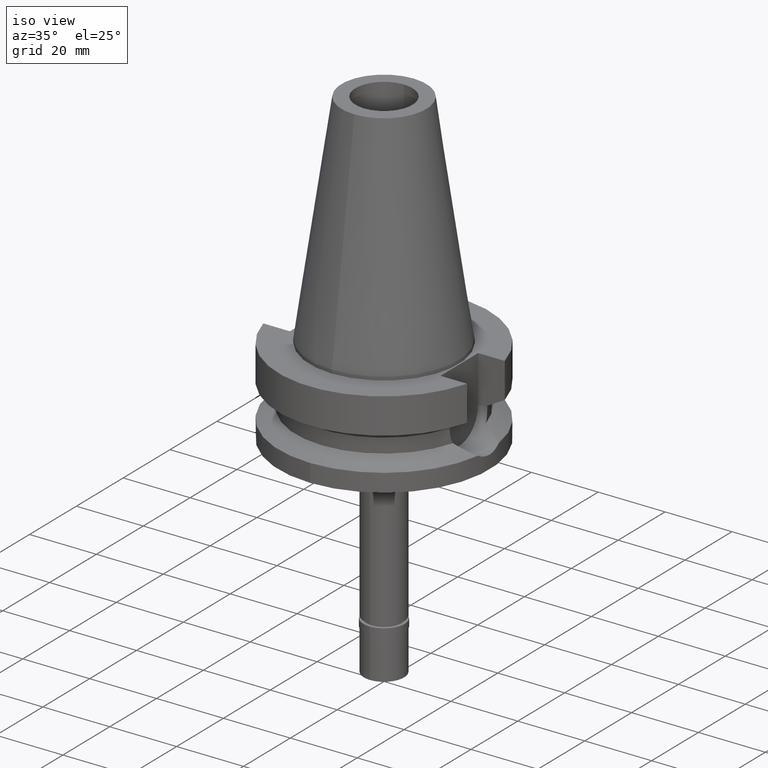
[diagram: clean part render]
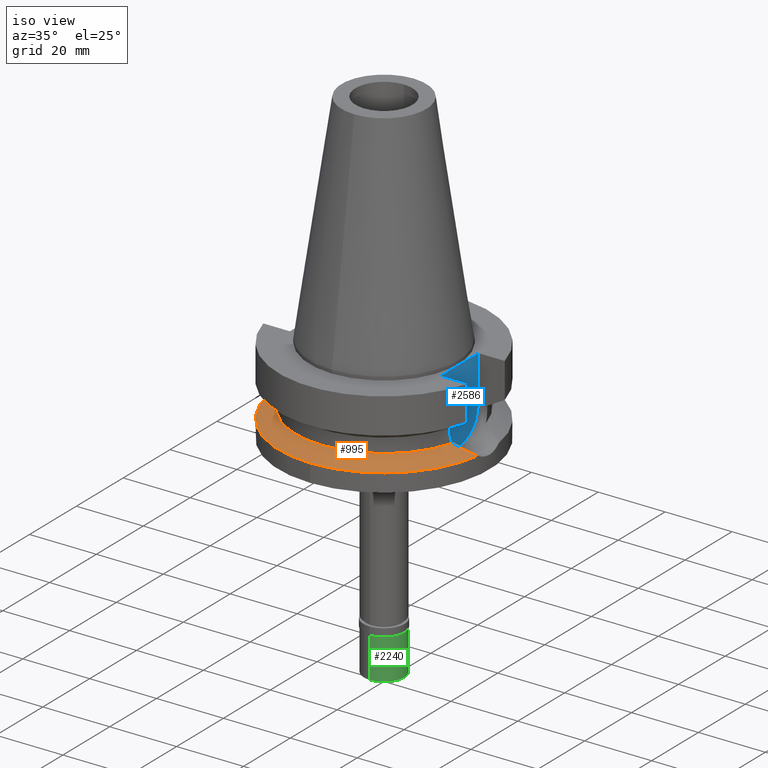
[diagram: same view with three faces highlighted in distinct colors, each labeled with its STEP entity id]
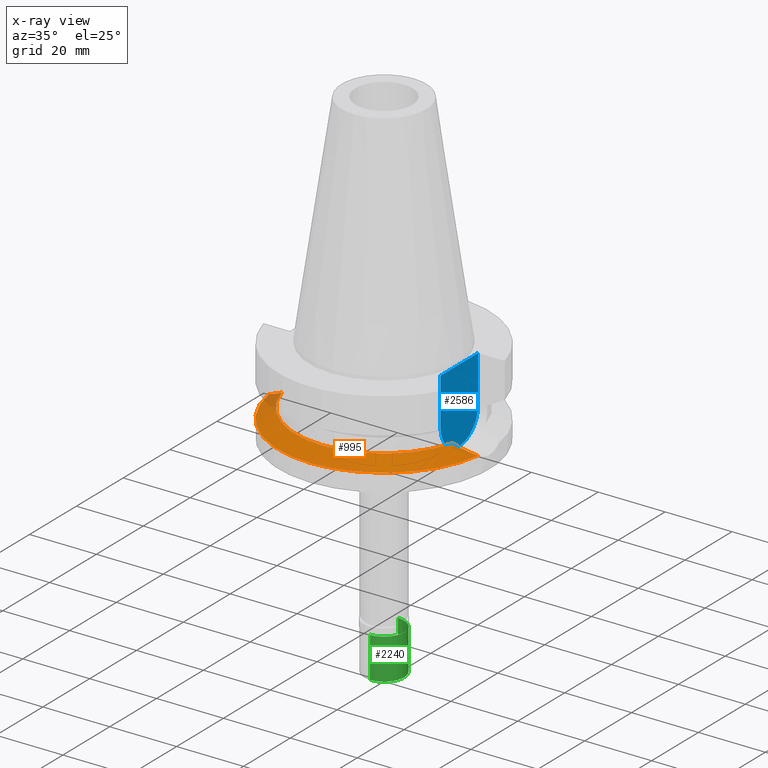
[diagram: x-ray of the same camera — body ghosted, the three highlighted faces saturated]
A machine part, iso view with three faces highlighted in distinct colors.
The next image is the same camera in x-ray (body ghosted, the three faces saturated) — at least one of them is partly hidden behind the body in this view.
Their STEP definitions:

[orange] entity #995 — the highlighted conical surface has half-angle 60 deg.
#23 = CARTESIAN_POINT ( 'NONE',  ( -27.91665599519674501, -6.326256498489589042, -19.97042922207483429 ) ) ;
#39 = CARTESIAN_POINT ( 'NONE',  ( -29.23770041687165389, -5.690342877628317808, -20.64502539969078754 ) ) ;
#70 = CARTESIAN_POINT ( 'NONE',  ( 30.86094042695607698, -4.726837132592925705, -21.47257276268047832 ) ) ;
#82 = ORIENTED_EDGE ( 'NONE', *, *, #2292, .F. ) ;
#159 = CARTESIAN_POINT ( 'NONE',  ( -28.90623061104463787, -5.854053380234840454, -20.47577725030850715 ) ) ;
#189 = DIRECTION ( 'NONE',  ( 0.0000000000000000000, -1.000000000000000000, 0.0000000000000000000 ) ) ;
#223 = EDGE_CURVE ( 'NONE', #1671, #296, #1855, .T. ) ;
#253 = CARTESIAN_POINT ( 'NONE',  ( 27.46418679692785503, -6.470923543611245776, -19.73859204447179394 ) ) ;
#296 = VERTEX_POINT ( 'NONE', #2435 ) ;
#308 = VERTEX_POINT ( 'NONE', #492 ) ;
#418 = DIRECTION ( 'NONE',  ( 0.0000000000000000000, 0.0000000000000000000, -1.000000000000000000 ) ) ;
#445 = CARTESIAN_POINT ( 'NONE',  ( 0.0000000000000000000, 0.0000000000000000000, -18.74774300138999905 ) ) ;
#458 = DIRECTION ( 'NONE',  ( -0.9634623335000935818, -0.2678438573619981722, 0.0000000000000000000 ) ) ;
#484 = CARTESIAN_POINT ( 'NONE',  ( -29.39861485140650643, -5.606511545029618127, -20.72716164797569149 ) ) ;
#492 = CARTESIAN_POINT ( 'NONE',  ( 31.17899877608999759, -4.485536235554000051, -21.63449434733000132 ) ) ;
#533 = CARTESIAN_POINT ( 'NONE',  ( 25.53175183775000079, -7.097862220092999941, -18.74774300138999905 ) ) ;
#593 = DIRECTION ( 'NONE',  ( 0.9898094849552905306, -0.1423979757318985240, 0.0000000000000000000 ) ) ;
#612 = ORIENTED_EDGE ( 'NONE', *, *, #223, .F. ) ;
#663 = EDGE_CURVE ( 'NONE', #811, #1564, #2039, .T. ) ;
#674 = AXIS2_PLACEMENT_3D ( 'NONE', #445, #2448, #458 ) ;
#695 = CARTESIAN_POINT ( 'NONE',  ( -30.85547637426014234, -4.730982538056352382, -21.46979104644768555 ) ) ;
#754 = CARTESIAN_POINT ( 'NONE',  ( 27.99482159680254512, -6.261425621167242106, -20.01005770070587175 ) ) ;
#811 = VERTEX_POINT ( 'NONE', #2603 ) ;
#842 = CARTESIAN_POINT ( 'NONE',  ( -25.53175183775000079, -7.097862220092999941, -18.74774300138999905 ) ) ;
#890 = AXIS2_PLACEMENT_3D ( 'NONE', #2030, #418, #189 ) ;
#918 = CARTESIAN_POINT ( 'NONE',  ( 27.56616803827350282, -6.432189333121868025, -19.79078586768881465 ) ) ;
#975 = CARTESIAN_POINT ( 'NONE',  ( 28.61727033556071120, -5.991929513340583213, -20.32820247016383064 ) ) ;
#995 = ADVANCED_FACE ( 'NONE', ( #2870 ), #1265, .T. ) ;
#1157 = CARTESIAN_POINT ( 'NONE',  ( -30.49946697029807297, -4.971809438719541951, -21.28856508413764814 ) ) ;
#1159 = CARTESIAN_POINT ( 'NONE',  ( 27.36032012337368968, -6.509925567482741648, -19.68542637296739173 ) ) ;
#1200 = CARTESIAN_POINT ( 'NONE',  ( 29.07876040572809018, -5.771718492576557225, -20.56387286027556272 ) ) ;
#1201 = EDGE_CURVE ( 'NONE', #308, #296, #1946, .T. ) ;
#1265 = CONICAL_SURFACE ( 'NONE', #890, 29.00000000000000000, 1.047197551196400456 ) ;
#1307 = CARTESIAN_POINT ( 'NONE',  ( -25.53175183775000079, -7.097862220092999941, -18.74774300138999905 ) ) ;
#1385 = CARTESIAN_POINT ( 'NONE',  ( -29.07221749766197050, -5.772864564141943156, -20.56053393730145373 ) ) ;
#1386 = CARTESIAN_POINT ( 'NONE',  ( 31.17899877608999759, -4.485536235554000051, -21.63449434733000132 ) ) ;
#1410 = CARTESIAN_POINT ( 'NONE',  ( 29.72167468138838942, -5.433057703903127589, -20.89190237001138328 ) ) ;
#1422 = CIRCLE ( 'NONE', #2129, 31.50000000000001421 ) ;
#1475 = DIRECTION ( 'NONE',  ( 0.0000000000000000000, -1.000000000000000000, 0.0000000000000000000 ) ) ;
#1476 = ORIENTED_EDGE ( 'NONE', *, *, #1201, .T. ) ;
#1503 = EDGE_CURVE ( 'NONE', #308, #811, #1422, .T. ) ;
#1520 = ORIENTED_EDGE ( 'NONE', *, *, #663, .F. ) ;
#1526 = AXIS2_PLACEMENT_3D ( 'NONE', #2256, #2037, #1475 ) ;
#1564 = VERTEX_POINT ( 'NONE', #2144 ) ;
#1610 = CARTESIAN_POINT ( 'NONE',  ( -29.91672236115661576, -5.322233568228618594, -20.99150469257599028 ) ) ;
#1631 = CARTESIAN_POINT ( 'NONE',  ( 30.50760157400905115, -4.966380887102499031, -21.29257391351155704 ) ) ;
#1671 = VERTEX_POINT ( 'NONE', #1307 ) ;
#1675 = CARTESIAN_POINT ( 'NONE',  ( 26.19475958010828265, -6.915612752816160835, -19.08836152347673121 ) ) ;
#1721 = DIRECTION ( 'NONE',  ( 0.0000000000000000000, 0.0000000000000000000, -1.000000000000000000 ) ) ;
#1750 = CARTESIAN_POINT ( 'NONE',  ( 0.0000000000000000000, 0.0000000000000000000, -21.63449434733000132 ) ) ;
#1828 = CARTESIAN_POINT ( 'NONE',  ( -31.17899877608999759, -4.485536235554000051, -21.63449434733000132 ) ) ;
#1839 = CARTESIAN_POINT ( 'NONE',  ( -26.81123316127202827, -6.746154729062234345, -19.40507323995066002 ) ) ;
#1855 = CIRCLE ( 'NONE', #674, 26.49999999999998224 ) ;
#1882 = CARTESIAN_POINT ( 'NONE',  ( 26.79347662289966081, -6.719813246825251163, -19.39523257282478852 ) ) ;
#1946 = B_SPLINE_CURVE_WITH_KNOTS ( 'NONE', 3,
 ( #1386, #70, #1631, #2764, #1410, #2096, #1200, #975, #2539, #754, #2312, #918, #253, #2725, #1159, #1882, #1675, #533 ),
 .UNSPECIFIED., .F., .F.,
 ( 4, 2, 2, 2, 2, 1, 1, 2, 2, 4 ),
 ( 0.0000000000000000000, 0.2500000000000017208, 0.3750000000000030531, 0.5000000000000043299, 0.6250000000000056621, 0.6875000000000066613, 0.7187500000000076605, 0.7343750000000073275, 0.7500000000000069944, 1.000000000000000000 ),
 .UNSPECIFIED. ) ;
#2030 = CARTESIAN_POINT ( 'NONE',  ( 0.0000000000000000000, 0.0000000000000000000, -20.19111867435999841 ) ) ;
#2037 = DIRECTION ( 'NONE',  ( 0.0000000000000000000, 0.0000000000000000000, -1.000000000000000000 ) ) ;
#2039 = CIRCLE ( 'NONE', #1526, 31.50000000000000000 ) ;
#2062 = CARTESIAN_POINT ( 'NONE',  ( -28.96088033270553552, -5.827576781848448739, -20.50368392953703278 ) ) ;
#2096 = CARTESIAN_POINT ( 'NONE',  ( 29.29797118317191007, -5.660539900918254652, -20.67574899180926096 ) ) ;
#2129 = AXIS2_PLACEMENT_3D ( 'NONE', #1750, #1721, #593 ) ;
#2144 = CARTESIAN_POINT ( 'NONE',  ( -31.17899877608999759, -4.485536235554000051, -21.63449434733000132 ) ) ;
#2256 = CARTESIAN_POINT ( 'NONE',  ( 0.0000000000000000000, 0.0000000000000000000, -21.63449434733000132 ) ) ;
#2270 = EDGE_LOOP ( 'NONE', ( #1520, #2874, #1476, #612, #82 ) ) ;
#2292 = EDGE_CURVE ( 'NONE', #1564, #1671, #2456, .T. ) ;
#2312 = CARTESIAN_POINT ( 'NONE',  ( 27.80041355600302211, -6.340958865111903542, -19.91063906293663521 ) ) ;
#2435 = CARTESIAN_POINT ( 'NONE',  ( 25.53175183775000079, -7.097862220092999941, -18.74774300138999905 ) ) ;
#2448 = DIRECTION ( 'NONE',  ( 0.0000000000000000000, 0.0000000000000000000, 1.000000000000000000 ) ) ;
#2456 = B_SPLINE_CURVE_WITH_KNOTS ( 'NONE', 3,
 ( #1828, #695, #1157, #1610, #2495, #484, #39, #1385, #2062, #159, #23, #1839, #842 ),
 .UNSPECIFIED., .F., .F.,
 ( 4, 2, 2, 1, 2, 2, 4 ),
 ( 0.0000000000000000000, 0.2499999999999936162, 0.3749999999999903411, 0.4374999999999886202, 0.4687499999999883427, 0.4999999999999881206, 1.000000000000000000 ),
 .UNSPECIFIED. ) ;
#2495 = CARTESIAN_POINT ( 'NONE',  ( -29.71435240757640628, -5.437235214418767448, -20.88828652631812588 ) ) ;
#2539 = CARTESIAN_POINT ( 'NONE',  ( 28.37511237440763878, -6.100896255914555866, -20.20447807965339138 ) ) ;
#2603 = CARTESIAN_POINT ( 'NONE',  ( 0.0000000000000000000, -31.50000000000000000, -21.63449434733000132 ) ) ;
#2725 = CARTESIAN_POINT ( 'NONE',  ( 27.39584627117069004, -6.496661911418017077, -19.70361212496916536 ) ) ;
#2764 = CARTESIAN_POINT ( 'NONE',  ( 29.92475788927969660, -5.317426797995933541, -20.99545974298328233 ) ) ;
#2870 = FACE_OUTER_BOUND ( 'NONE', #2270, .T. ) ;
#2874 = ORIENTED_EDGE ( 'NONE', *, *, #1503, .F. ) ;

[blue] entity #2586 — the highlighted planar face has unit normal (1, 0, 0).
#77 = DIRECTION ( 'NONE',  ( 0.0000000000000000000, 0.0000000000000000000, 1.000000000000000000 ) ) ;
#113 = ORIENTED_EDGE ( 'NONE', *, *, #360, .F. ) ;
#127 = EDGE_CURVE ( 'NONE', #2833, #322, #1919, .T. ) ;
#142 = VECTOR ( 'NONE', #257, 1000.000000000000000 ) ;
#163 = DIRECTION ( 'NONE',  ( 0.0000000000000000000, 0.0000000000000000000, -1.000000000000000000 ) ) ;
#204 = CARTESIAN_POINT ( 'NONE',  ( 22.50000000000000000, 8.050000000000000711, -1.000000000000000000 ) ) ;
#257 = DIRECTION ( 'NONE',  ( 0.0000000000000000000, -1.000000000000000000, 0.0000000000000000000 ) ) ;
#322 = VERTEX_POINT ( 'NONE', #1165 ) ;
#360 = EDGE_CURVE ( 'NONE', #1207, #2092, #1832, .T. ) ;
#374 = ORIENTED_EDGE ( 'NONE', *, *, #2386, .F. ) ;
#441 = EDGE_LOOP ( 'NONE', ( #113, #374, #1292, #1913 ) ) ;
#448 = EDGE_CURVE ( 'NONE', #2833, #2092, #1205, .T. ) ;
#516 = CIRCLE ( 'NONE', #978, 8.050000000000000711 ) ;
#607 = AXIS2_PLACEMENT_3D ( 'NONE', #1057, #2613, #2192 ) ;
#767 = CARTESIAN_POINT ( 'NONE',  ( 22.50000000000000000, 0.0000000000000000000, -14.94999999999999929 ) ) ;
#978 = AXIS2_PLACEMENT_3D ( 'NONE', #767, #2355, #1699 ) ;
#1057 = CARTESIAN_POINT ( 'NONE',  ( 22.50000000000000000, 0.0000000000000000000, 0.0000000000000000000 ) ) ;
#1165 = CARTESIAN_POINT ( 'NONE',  ( 22.50000000000000000, 8.050000000000000711, -14.94999999999999929 ) ) ;
#1205 = LINE ( 'NONE', #2112, #142 ) ;
#1207 = VERTEX_POINT ( 'NONE', #2063 ) ;
#1292 = ORIENTED_EDGE ( 'NONE', *, *, #127, .F. ) ;
#1297 = CARTESIAN_POINT ( 'NONE',  ( 22.50000000000000000, 8.050000000000000711, -1.000000000000000000 ) ) ;
#1522 = VECTOR ( 'NONE', #163, 1000.000000000000000 ) ;
#1636 = CARTESIAN_POINT ( 'NONE',  ( 22.50000000000000000, -8.050000000000000711, -14.94999999999999929 ) ) ;
#1699 = DIRECTION ( 'NONE',  ( 0.0000000000000000000, 0.0000000000000000000, -1.000000000000000000 ) ) ;
#1832 = LINE ( 'NONE', #1636, #1996 ) ;
#1913 = ORIENTED_EDGE ( 'NONE', *, *, #448, .T. ) ;
#1919 = LINE ( 'NONE', #1297, #1522 ) ;
#1996 = VECTOR ( 'NONE', #77, 1000.000000000000000 ) ;
#2063 = CARTESIAN_POINT ( 'NONE',  ( 22.50000000000000000, -8.050000000000000711, -14.94999999999999929 ) ) ;
#2092 = VERTEX_POINT ( 'NONE', #2832 ) ;
#2112 = CARTESIAN_POINT ( 'NONE',  ( 22.50000000000000000, 8.050000000000000711, -1.000000000000000000 ) ) ;
#2135 = FACE_OUTER_BOUND ( 'NONE', #441, .T. ) ;
#2192 = DIRECTION ( 'NONE',  ( 0.0000000000000000000, 1.000000000000000000, 0.0000000000000000000 ) ) ;
#2355 = DIRECTION ( 'NONE',  ( -1.000000000000000000, 0.0000000000000000000, 0.0000000000000000000 ) ) ;
#2386 = EDGE_CURVE ( 'NONE', #322, #1207, #516, .T. ) ;
#2586 = ADVANCED_FACE ( 'NONE', ( #2135 ), #2749, .T. ) ;
#2613 = DIRECTION ( 'NONE',  ( 1.000000000000000000, 0.0000000000000000000, 0.0000000000000000000 ) ) ;
#2749 = PLANE ( 'NONE',  #607 ) ;
#2832 = CARTESIAN_POINT ( 'NONE',  ( 22.50000000000000000, -8.050000000000000711, -1.000000000000000000 ) ) ;
#2833 = VERTEX_POINT ( 'NONE', #204 ) ;

[green] entity #2240 — the highlighted cylindrical surface (edge-blend (fillet) strip) has radius 6 mm, axis along (0, 0, 1).
#69 = VERTEX_POINT ( 'NONE', #1739 ) ;
#209 = EDGE_CURVE ( 'NONE', #569, #69, #2464, .T. ) ;
#240 = FACE_OUTER_BOUND ( 'NONE', #2666, .T. ) ;
#421 = DIRECTION ( 'NONE',  ( 0.0000000000000000000, 0.0000000000000000000, -1.000000000000000000 ) ) ;
#562 = EDGE_CURVE ( 'NONE', #569, #1869, #625, .T. ) ;
#569 = VERTEX_POINT ( 'NONE', #645 ) ;
#625 = CIRCLE ( 'NONE', #2094, 6.000000000000000000 ) ;
#645 = CARTESIAN_POINT ( 'NONE',  ( 0.0000000000000000000, 6.000000000000000000, -2.299999999999999822 ) ) ;
#817 = DIRECTION ( 'NONE',  ( 0.0000000000000000000, 0.0000000000000000000, -1.000000000000000000 ) ) ;
#883 = EDGE_CURVE ( 'NONE', #1869, #2559, #1701, .T. ) ;
#929 = AXIS2_PLACEMENT_3D ( 'NONE', #2695, #2640, #1170 ) ;
#973 = ORIENTED_EDGE ( 'NONE', *, *, #562, .T. ) ;
#1062 = CARTESIAN_POINT ( 'NONE',  ( 0.0000000000000000000, 0.0000000000000000000, -2.299999999999999822 ) ) ;
#1170 = DIRECTION ( 'NONE',  ( 0.0000000000000000000, -1.000000000000000000, 0.0000000000000000000 ) ) ;
#1227 = CARTESIAN_POINT ( 'NONE',  ( 0.0000000000000000000, -6.000000000000000000, -14.50000000000000000 ) ) ;
#1272 = ORIENTED_EDGE ( 'NONE', *, *, #2207, .T. ) ;
#1289 = CARTESIAN_POINT ( 'NONE',  ( 0.0000000000000000000, -6.000000000000000000, -2.299999999999999822 ) ) ;
#1595 = CYLINDRICAL_SURFACE ( 'NONE', #2575, 6.000000000000000000 ) ;
#1602 = DIRECTION ( 'NONE',  ( 0.0000000000000000000, 0.0000000000000000000, -1.000000000000000000 ) ) ;
#1641 = DIRECTION ( 'NONE',  ( 0.0000000000000000000, 0.0000000000000000000, 1.000000000000000000 ) ) ;
#1701 = LINE ( 'NONE', #1289, #2401 ) ;
#1739 = CARTESIAN_POINT ( 'NONE',  ( 0.0000000000000000000, 6.000000000000000000, -14.50000000000000000 ) ) ;
#1751 = CIRCLE ( 'NONE', #929, 6.000000000000000000 ) ;
#1815 = ORIENTED_EDGE ( 'NONE', *, *, #209, .F. ) ;
#1869 = VERTEX_POINT ( 'NONE', #2302 ) ;
#2040 = VECTOR ( 'NONE', #1602, 1000.000000000000000 ) ;
#2051 = CARTESIAN_POINT ( 'NONE',  ( 0.0000000000000000000, 0.0000000000000000000, -15.22500000000000142 ) ) ;
#2094 = AXIS2_PLACEMENT_3D ( 'NONE', #1062, #421, #2665 ) ;
#2206 = ORIENTED_EDGE ( 'NONE', *, *, #883, .T. ) ;
#2207 = EDGE_CURVE ( 'NONE', #2559, #69, #1751, .T. ) ;
#2217 = CARTESIAN_POINT ( 'NONE',  ( 0.0000000000000000000, 6.000000000000000000, -2.299999999999999822 ) ) ;
#2240 = ADVANCED_FACE ( 'NONE', ( #240 ), #1595, .T. ) ;
#2302 = CARTESIAN_POINT ( 'NONE',  ( 0.0000000000000000000, -6.000000000000000000, -2.299999999999999822 ) ) ;
#2401 = VECTOR ( 'NONE', #817, 1000.000000000000000 ) ;
#2464 = LINE ( 'NONE', #2217, #2040 ) ;
#2559 = VERTEX_POINT ( 'NONE', #1227 ) ;
#2575 = AXIS2_PLACEMENT_3D ( 'NONE', #2051, #1641, #2706 ) ;
#2640 = DIRECTION ( 'NONE',  ( 0.0000000000000000000, 0.0000000000000000000, 1.000000000000000000 ) ) ;
#2665 = DIRECTION ( 'NONE',  ( 0.0000000000000000000, 1.000000000000000000, 0.0000000000000000000 ) ) ;
#2666 = EDGE_LOOP ( 'NONE', ( #973, #2206, #1272, #1815 ) ) ;
#2695 = CARTESIAN_POINT ( 'NONE',  ( 0.0000000000000000000, 0.0000000000000000000, -14.50000000000000000 ) ) ;
#2706 = DIRECTION ( 'NONE',  ( 0.0000000000000000000, 1.000000000000000000, 0.0000000000000000000 ) ) ;